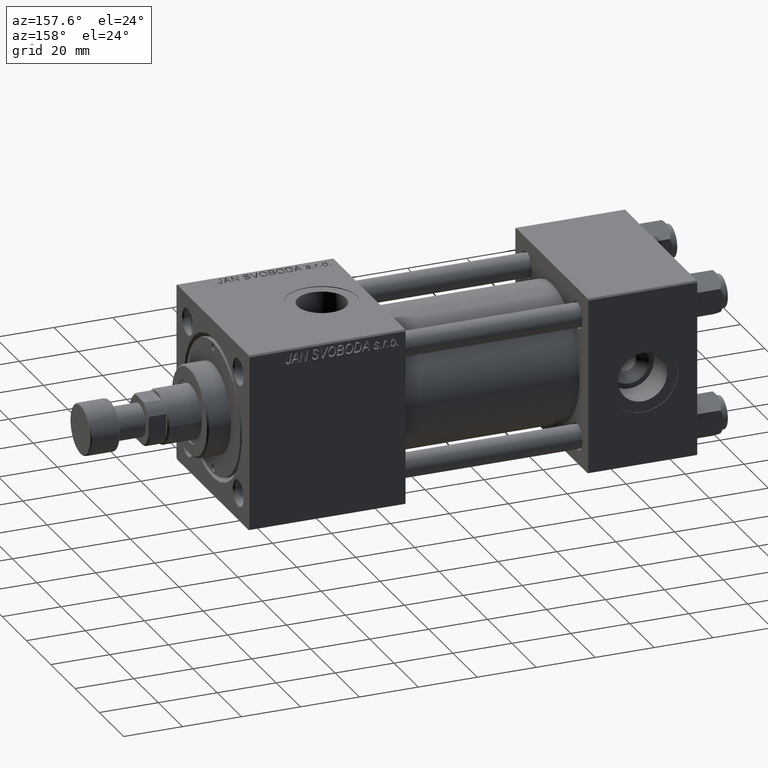
[diagram: clean part render]
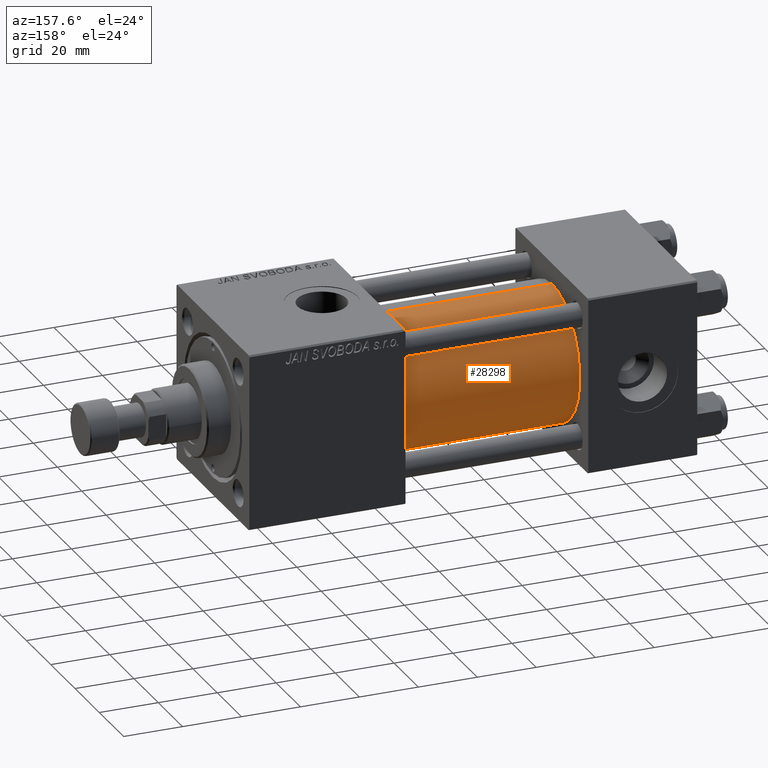
[diagram: same view with one face highlighted and labeled with its STEP entity id]
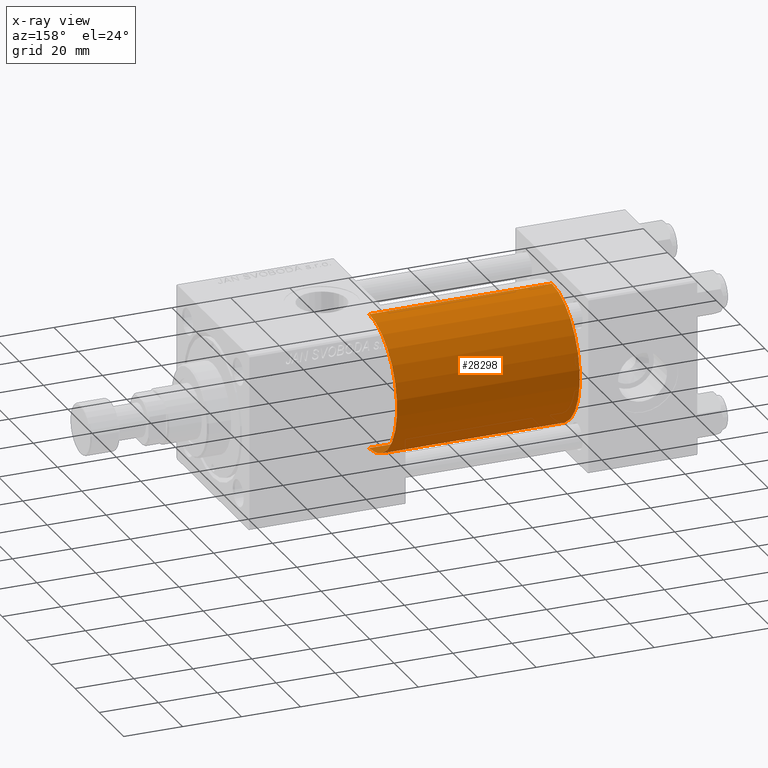
[diagram: x-ray of the same camera — body ghosted, the highlighted face saturated]
A machine part, auxiliary view. The second image highlights one B-rep face of the part: STEP entity #28298.
The next image is the same camera in x-ray: the body ghosted, the highlighted face saturated — about 0% of this face is hidden behind the body in this view.
In plain terms, the highlighted cylindrical surface (partial cylindrical patch) has radius 23 mm, axis along (-1, -0, -0).
Its self-contained STEP definition (entity closure, byte-faithful):
#934 = EDGE_CURVE ( 'NONE', #33284, #18040, #44454, .T. ) ;
#2269 = CARTESIAN_POINT ( 'NONE',  ( 37.00000000000000000, 2.146024240737016609E-16, -23.00000000000000000 ) ) ;
#4118 = CARTESIAN_POINT ( 'NONE',  ( 99.00000000000000000, 2.146024240737016609E-16, -23.00000000000000000 ) ) ;
#4803 = AXIS2_PLACEMENT_3D ( 'NONE', #19771, #52356, #8043 ) ;
#5716 = CIRCLE ( 'NONE', #48373, 23.00000000000000000 ) ;
#6321 = CARTESIAN_POINT ( 'NONE',  ( 99.00000000000000000, -2.602085213965210642E-15, 0.000000000000000000 ) ) ;
#8043 = DIRECTION ( 'NONE',  ( 0.000000000000000000, 0.000000000000000000, 1.000000000000000000 ) ) ;
#8208 = CYLINDRICAL_SURFACE ( 'NONE', #44350, 23.00000000000000000 ) ;
#11419 = DIRECTION ( 'NONE',  ( -1.000000000000000000, -0.000000000000000000, -0.000000000000000000 ) ) ;
#11954 = FACE_OUTER_BOUND ( 'NONE', #45356, .T. ) ;
#14339 = VECTOR ( 'NONE', #17895, 1000.000000000000000 ) ;
#15067 = CIRCLE ( 'NONE', #4803, 23.00000000000000000 ) ;
#16965 = CARTESIAN_POINT ( 'NONE',  ( 99.00000000000000000, -2.602085213965210642E-15, 23.00000000000000000 ) ) ;
#17895 = DIRECTION ( 'NONE',  ( -1.000000000000000000, -0.000000000000000000, -0.000000000000000000 ) ) ;
#18040 = VERTEX_POINT ( 'NONE', #2269 ) ;
#19349 = EDGE_CURVE ( 'NONE', #18040, #49831, #15067, .T. ) ;
#19771 = CARTESIAN_POINT ( 'NONE',  ( 37.00000000000000000, -2.602085213965210642E-15, 0.000000000000000000 ) ) ;
#20378 = DIRECTION ( 'NONE',  ( -1.000000000000000000, -0.000000000000000000, -0.000000000000000000 ) ) ;
#21436 = EDGE_CURVE ( 'NONE', #33284, #42499, #5716, .T. ) ;
#23200 = EDGE_CURVE ( 'NONE', #42499, #49831, #29910, .T. ) ;
#24486 = CARTESIAN_POINT ( 'NONE',  ( 99.00000000000000000, -2.602085213965210642E-15, 0.000000000000000000 ) ) ;
#28298 = ADVANCED_FACE ( 'NONE', ( #11954 ), #8208, .T. ) ;
#29910 = LINE ( 'NONE', #30437, #14339 ) ;
#30437 = CARTESIAN_POINT ( 'NONE',  ( 99.00000000000000000, -2.602085213965210642E-15, 23.00000000000000000 ) ) ;
#32574 = ORIENTED_EDGE ( 'NONE', *, *, #21436, .F. ) ;
#33284 = VERTEX_POINT ( 'NONE', #40390 ) ;
#34357 = DIRECTION ( 'NONE',  ( 0.000000000000000000, 0.000000000000000000, -1.000000000000000000 ) ) ;
#36699 = ORIENTED_EDGE ( 'NONE', *, *, #23200, .F. ) ;
#37820 = VECTOR ( 'NONE', #20378, 1000.000000000000000 ) ;
#39401 = ORIENTED_EDGE ( 'NONE', *, *, #19349, .T. ) ;
#40390 = CARTESIAN_POINT ( 'NONE',  ( 99.00000000000000000, 2.146024240737016609E-16, -23.00000000000000000 ) ) ;
#41701 = ORIENTED_EDGE ( 'NONE', *, *, #934, .T. ) ;
#42499 = VERTEX_POINT ( 'NONE', #16965 ) ;
#44350 = AXIS2_PLACEMENT_3D ( 'NONE', #24486, #11419, #52782 ) ;
#44454 = LINE ( 'NONE', #4118, #37820 ) ;
#45356 = EDGE_LOOP ( 'NONE', ( #32574, #41701, #39401, #36699 ) ) ;
#46387 = DIRECTION ( 'NONE',  ( 1.000000000000000000, 0.000000000000000000, 0.000000000000000000 ) ) ;
#48373 = AXIS2_PLACEMENT_3D ( 'NONE', #6321, #46387, #34357 ) ;
#49609 = CARTESIAN_POINT ( 'NONE',  ( 37.00000000000000000, -2.602085213965210642E-15, 23.00000000000000000 ) ) ;
#49831 = VERTEX_POINT ( 'NONE', #49609 ) ;
#52356 = DIRECTION ( 'NONE',  ( 1.000000000000000000, -0.000000000000000000, 0.000000000000000000 ) ) ;
#52782 = DIRECTION ( 'NONE',  ( 0.000000000000000000, 0.000000000000000000, 1.000000000000000000 ) ) ;